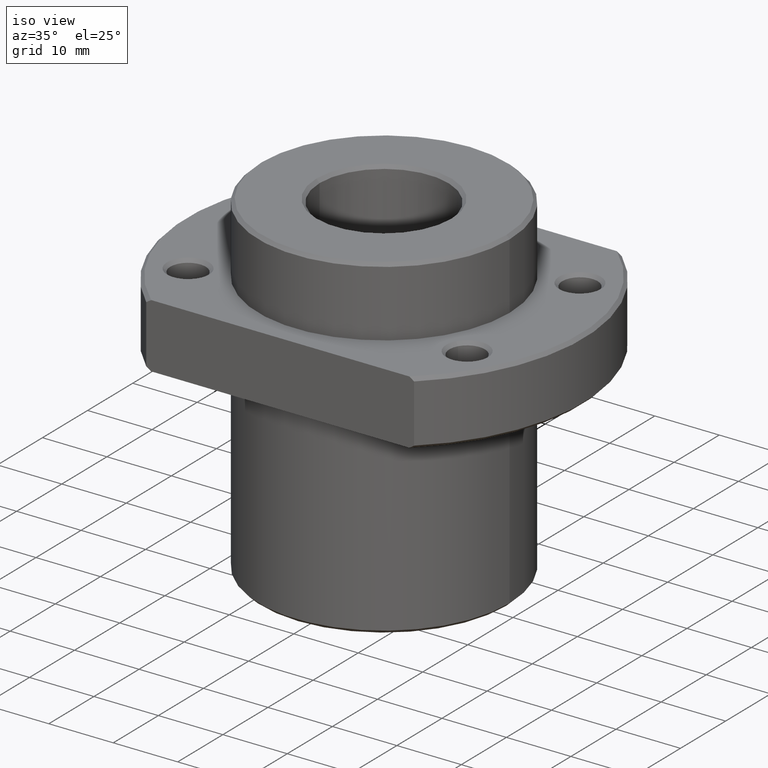
[diagram: clean part render]
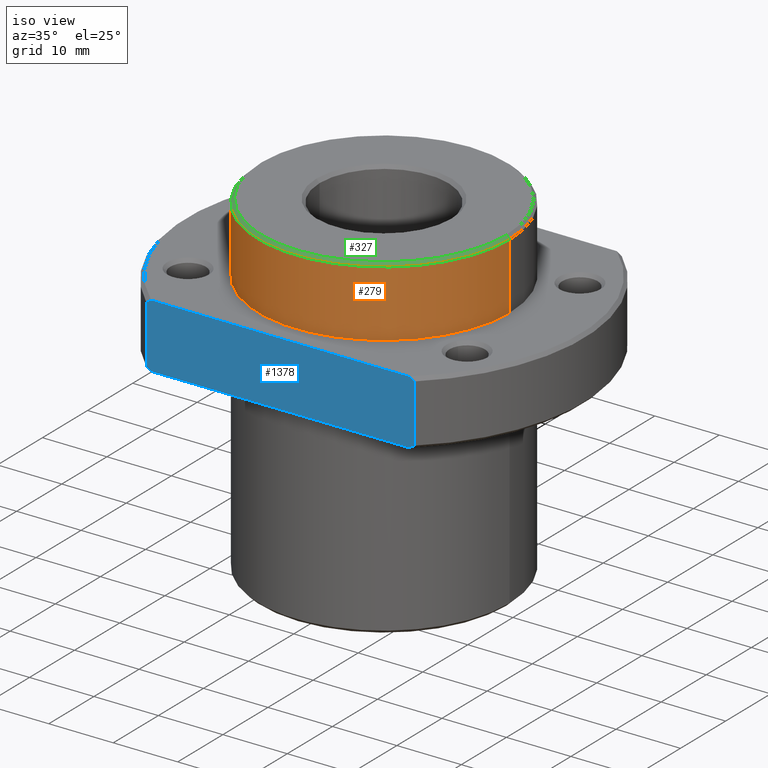
[diagram: same view with three faces highlighted in distinct colors, each labeled with its STEP entity id]
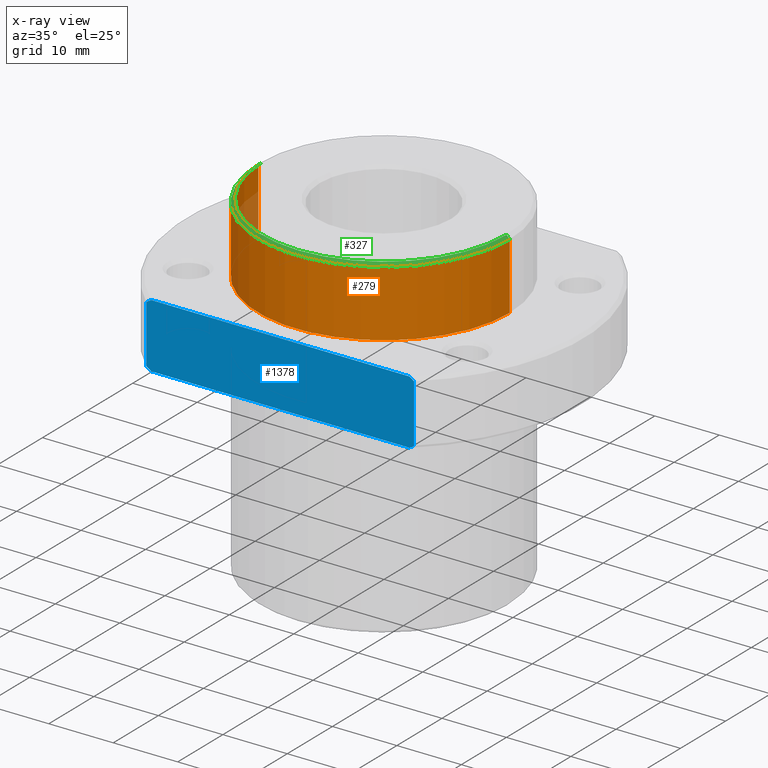
[diagram: x-ray of the same camera — body ghosted, the three highlighted faces saturated]
A machine part, iso view with three faces highlighted in distinct colors.
The next image is the same camera in x-ray (body ghosted, the three faces saturated) — at least one of them is partly hidden behind the body in this view.
Their STEP definitions:

[orange] entity #279 — the highlighted cylindrical surface (partial cylindrical patch) has radius 19.5 mm, axis along (0, 0, 1).
#35=AXIS2_PLACEMENT_3D('Cylinder Axis2P3D',#32,#33,#34) ;
#265=AXIS2_PLACEMENT_3D('Circle Axis2P3D',#263,#264,$) ;
#270=AXIS2_PLACEMENT_3D('Circle Axis2P3D',#268,#269,$) ;
#32=CARTESIAN_POINT('Axis2P3D Location',(0.,0.,26.)) ;
#228=CARTESIAN_POINT('Line Origine',(19.5,0.,26.)) ;
#232=CARTESIAN_POINT('Vertex',(19.5,0.,41.2)) ;
#234=CARTESIAN_POINT('Vertex',(19.5,-4.77596477991E-015,51.5)) ;
#241=CARTESIAN_POINT('Vertex',(-19.5,2.38798238995E-015,41.2)) ;
#244=CARTESIAN_POINT('Line Origine',(-19.5,2.38798238995E-015,26.)) ;
#248=CARTESIAN_POINT('Vertex',(-19.5,2.38798238995E-015,51.5)) ;
#263=CARTESIAN_POINT('Axis2P3D Location',(0.,0.,41.2)) ;
#268=CARTESIAN_POINT('Axis2P3D Location',(0.,0.,51.5)) ;
#33=DIRECTION('Axis2P3D Direction',(0.,0.,1.)) ;
#34=DIRECTION('Axis2P3D XDirection',(1.,0.,0.)) ;
#229=DIRECTION('Vector Direction',(0.,0.,1.)) ;
#245=DIRECTION('Vector Direction',(0.,0.,1.)) ;
#264=DIRECTION('Axis2P3D Direction',(0.,0.,1.)) ;
#269=DIRECTION('Axis2P3D Direction',(0.,0.,1.)) ;
#230=VECTOR('Line Direction',#229,1.) ;
#246=VECTOR('Line Direction',#245,1.) ;
#274=ORIENTED_EDGE('',*,*,#250,.F.) ;
#275=ORIENTED_EDGE('',*,*,#267,.T.) ;
#276=ORIENTED_EDGE('',*,*,#236,.T.) ;
#277=ORIENTED_EDGE('',*,*,#272,.F.) ;
#279=ADVANCED_FACE('',(#278),#36,.T.) ;
#266=CIRCLE('generated circle',#265,19.5) ;
#271=CIRCLE('generated circle',#270,19.5) ;
#36=CYLINDRICAL_SURFACE('generated cylinder',#35,19.5) ;
#236=EDGE_CURVE('',#233,#235,#231,.T.) ;
#250=EDGE_CURVE('',#242,#249,#247,.T.) ;
#267=EDGE_CURVE('',#242,#233,#266,.T.) ;
#272=EDGE_CURVE('',#249,#235,#271,.T.) ;
#273=EDGE_LOOP('',(#274,#275,#276,#277)) ;
#278=FACE_OUTER_BOUND('',#273,.T.) ;
#231=LINE('Line',#228,#230) ;
#247=LINE('Line',#244,#246) ;
#233=VERTEX_POINT('',#232) ;
#235=VERTEX_POINT('',#234) ;
#242=VERTEX_POINT('',#241) ;
#249=VERTEX_POINT('',#248) ;

[blue] entity #1378 — the highlighted planar face has unit normal (0, -1, 0).
#1358=AXIS2_PLACEMENT_3D('Plane Axis2P3D',#1355,#1356,#1357) ;
#1068=CARTESIAN_POINT('Vertex',(20.031225624,-23.,41.2)) ;
#1074=CARTESIAN_POINT('Control Point',(20.7846096908,-23.,40.7)) ;
#1075=CARTESIAN_POINT('Control Point',(20.5309634757,-23.,40.8700625026)) ;
#1076=CARTESIAN_POINT('Control Point',(20.2798384372,-22.9999998625,41.0367207793)) ;
#1077=CARTESIAN_POINT('Control Point',(20.0312257819,-22.9999998625,41.2)) ;
#1078=CARTESIAN_POINT('Vertex',(20.7846096908,-23.,40.7)) ;
#1113=CARTESIAN_POINT('Line Origine',(20.7846096908,-23.,36.2)) ;
#1117=CARTESIAN_POINT('Vertex',(20.7846096908,-23.,31.7)) ;
#1146=CARTESIAN_POINT('Control Point',(20.7846095318,-23.0000001437,31.7)) ;
#1147=CARTESIAN_POINT('Control Point',(20.530963318,-23.0000001437,31.5299374996)) ;
#1148=CARTESIAN_POINT('Control Point',(20.2798382781,-23.,31.3632792186)) ;
#1149=CARTESIAN_POINT('Control Point',(20.031225624,-23.,31.2)) ;
#1150=CARTESIAN_POINT('Vertex',(20.031225624,-23.,31.2)) ;
#1176=CARTESIAN_POINT('Vertex',(-20.031225624,-23.,31.2)) ;
#1184=CARTESIAN_POINT('Line Origine',(0.,-23.,31.2)) ;
#1222=CARTESIAN_POINT('Control Point',(-20.7846099551,-22.9999997612,31.7)) ;
#1223=CARTESIAN_POINT('Control Point',(-20.5309635562,-22.9999997612,31.529937372)) ;
#1224=CARTESIAN_POINT('Control Point',(-20.2798384574,-23.,31.3632793363)) ;
#1225=CARTESIAN_POINT('Control Point',(-20.031225624,-23.,31.2)) ;
#1226=CARTESIAN_POINT('Vertex',(-20.7846096908,-23.,31.7)) ;
#1254=CARTESIAN_POINT('Line Origine',(0.,-23.,41.2)) ;
#1258=CARTESIAN_POINT('Vertex',(-20.031225624,-23.,41.2)) ;
#1312=CARTESIAN_POINT('Line Origine',(-20.7846096908,-23.,36.2)) ;
#1316=CARTESIAN_POINT('Vertex',(-20.7846096908,-23.,40.7)) ;
#1355=CARTESIAN_POINT('Axis2P3D Location',(-20.7846096908,-23.,31.2)) ;
#1361=CARTESIAN_POINT('Control Point',(-20.7846096908,-23.,40.7)) ;
#1362=CARTESIAN_POINT('Control Point',(-20.632421852,-23.,40.8020375752)) ;
#1363=CARTESIAN_POINT('Control Point',(-20.4809941513,-23.,40.9030514082)) ;
#1364=CARTESIAN_POINT('Control Point',(-20.3303104734,-23.,41.0030540092)) ;
#1365=CARTESIAN_POINT('Control Point',(-20.1803933235,-23.,41.1020323998)) ;
#1366=CARTESIAN_POINT('Control Point',(-20.031225624,-23.,41.2)) ;
#1114=DIRECTION('Vector Direction',(0.,0.,1.)) ;
#1185=DIRECTION('Vector Direction',(1.,0.,0.)) ;
#1255=DIRECTION('Vector Direction',(1.,0.,0.)) ;
#1313=DIRECTION('Vector Direction',(0.,0.,1.)) ;
#1356=DIRECTION('Axis2P3D Direction',(0.,-1.,0.)) ;
#1357=DIRECTION('Axis2P3D XDirection',(1.,0.,0.)) ;
#1115=VECTOR('Line Direction',#1114,1.) ;
#1186=VECTOR('Line Direction',#1185,1.) ;
#1256=VECTOR('Line Direction',#1255,1.) ;
#1314=VECTOR('Line Direction',#1313,1.) ;
#1369=ORIENTED_EDGE('',*,*,#1318,.F.) ;
#1370=ORIENTED_EDGE('',*,*,#1228,.F.) ;
#1371=ORIENTED_EDGE('',*,*,#1188,.T.) ;
#1372=ORIENTED_EDGE('',*,*,#1152,.F.) ;
#1373=ORIENTED_EDGE('',*,*,#1119,.T.) ;
#1374=ORIENTED_EDGE('',*,*,#1080,.F.) ;
#1375=ORIENTED_EDGE('',*,*,#1260,.F.) ;
#1376=ORIENTED_EDGE('',*,*,#1367,.F.) ;
#1378=ADVANCED_FACE('',(#1377),#1359,.T.) ;
#1073=B_SPLINE_CURVE_WITH_KNOTS('',3,(#1074,#1075,#1076,#1077),.UNSPECIFIED.,.F.,.U.,(4,4),(0.,2.16254865442),.UNSPECIFIED.) ;
#1145=B_SPLINE_CURVE_WITH_KNOTS('',3,(#1146,#1147,#1148,#1149),.UNSPECIFIED.,.F.,.U.,(4,4),(0.,2.16254865017),.UNSPECIFIED.) ;
#1221=B_SPLINE_CURVE_WITH_KNOTS('',3,(#1222,#1223,#1224,#1225),.UNSPECIFIED.,.F.,.U.,(4,4),(0.,2.16255020988),.UNSPECIFIED.) ;
#1360=B_SPLINE_CURVE_WITH_KNOTS('',5,(#1361,#1362,#1363,#1364,#1365,#1366),.UNSPECIFIED.,.F.,.U.,(6,6),(0.,2.16255021414),.UNSPECIFIED.) ;
#1080=EDGE_CURVE('',#1069,#1079,#1073,.F.) ;
#1119=EDGE_CURVE('',#1118,#1079,#1116,.T.) ;
#1152=EDGE_CURVE('',#1118,#1151,#1145,.T.) ;
#1188=EDGE_CURVE('',#1177,#1151,#1187,.T.) ;
#1228=EDGE_CURVE('',#1177,#1227,#1221,.F.) ;
#1260=EDGE_CURVE('',#1259,#1069,#1257,.T.) ;
#1318=EDGE_CURVE('',#1227,#1317,#1315,.T.) ;
#1367=EDGE_CURVE('',#1317,#1259,#1360,.T.) ;
#1368=EDGE_LOOP('',(#1369,#1370,#1371,#1372,#1373,#1374,#1375,#1376)) ;
#1377=FACE_OUTER_BOUND('',#1368,.T.) ;
#1116=LINE('Line',#1113,#1115) ;
#1187=LINE('Line',#1184,#1186) ;
#1257=LINE('Line',#1254,#1256) ;
#1315=LINE('Line',#1312,#1314) ;
#1359=PLANE('Plane',#1358) ;
#1069=VERTEX_POINT('',#1068) ;
#1079=VERTEX_POINT('',#1078) ;
#1118=VERTEX_POINT('',#1117) ;
#1151=VERTEX_POINT('',#1150) ;
#1177=VERTEX_POINT('',#1176) ;
#1227=VERTEX_POINT('',#1226) ;
#1259=VERTEX_POINT('',#1258) ;
#1317=VERTEX_POINT('',#1316) ;

[green] entity #327 — the highlighted conical surface has half-angle 45 deg.
#270=AXIS2_PLACEMENT_3D('Circle Axis2P3D',#268,#269,$) ;
#314=AXIS2_PLACEMENT_3D('Cone Axis2P3D',#311,#312,#313) ;
#318=AXIS2_PLACEMENT_3D('Circle Axis2P3D',#316,#317,$) ;
#234=CARTESIAN_POINT('Vertex',(19.5,-4.77596477991E-015,51.5)) ;
#248=CARTESIAN_POINT('Vertex',(-19.5,2.38798238995E-015,51.5)) ;
#268=CARTESIAN_POINT('Axis2P3D Location',(0.,0.,51.5)) ;
#285=CARTESIAN_POINT('Line Origine',(19.25,-3.50716606754E-015,51.75)) ;
#289=CARTESIAN_POINT('Vertex',(19.,-2.03965601461E-014,52.)) ;
#292=CARTESIAN_POINT('Line Origine',(-19.25,4.68584968309E-015,51.75)) ;
#296=CARTESIAN_POINT('Vertex',(-19.,3.84417106254E-007,52.)) ;
#311=CARTESIAN_POINT('Axis2P3D Location',(2.0605739337E-013,1.38555833473E-013,71.)) ;
#316=CARTESIAN_POINT('Axis2P3D Location',(3.5527136788E-015,3.5527136788E-015,52.)) ;
#269=DIRECTION('Axis2P3D Direction',(0.,0.,1.)) ;
#286=DIRECTION('Vector Direction',(0.707106781187,9.9197636364E-015,-0.707106781187)) ;
#293=DIRECTION('Vector Direction',(-0.707106781187,1.02207162076E-014,-0.707106781187)) ;
#312=DIRECTION('Axis2P3D Direction',(-1.06581410364E-014,-7.1054273576E-015,-1.)) ;
#313=DIRECTION('Axis2P3D XDirection',(-0.862227157058,0.506521795811,5.66348276865E-015)) ;
#317=DIRECTION('Axis2P3D Direction',(5.8377007579E-015,9.93723107252E-015,1.)) ;
#287=VECTOR('Line Direction',#286,1.) ;
#294=VECTOR('Line Direction',#293,1.) ;
#322=ORIENTED_EDGE('',*,*,#298,.T.) ;
#323=ORIENTED_EDGE('',*,*,#272,.T.) ;
#324=ORIENTED_EDGE('',*,*,#291,.F.) ;
#325=ORIENTED_EDGE('',*,*,#320,.F.) ;
#327=ADVANCED_FACE('',(#326),#315,.T.) ;
#271=CIRCLE('generated circle',#270,19.5) ;
#319=CIRCLE('generated circle',#318,19.) ;
#315=CONICAL_SURFACE('Cone',#314,0.,0.785398163397) ;
#272=EDGE_CURVE('',#249,#235,#271,.T.) ;
#291=EDGE_CURVE('',#290,#235,#288,.T.) ;
#298=EDGE_CURVE('',#297,#249,#295,.T.) ;
#320=EDGE_CURVE('',#297,#290,#319,.T.) ;
#321=EDGE_LOOP('',(#322,#323,#324,#325)) ;
#326=FACE_OUTER_BOUND('',#321,.T.) ;
#288=LINE('Line',#285,#287) ;
#295=LINE('Line',#292,#294) ;
#235=VERTEX_POINT('',#234) ;
#249=VERTEX_POINT('',#248) ;
#290=VERTEX_POINT('',#289) ;
#297=VERTEX_POINT('',#296) ;